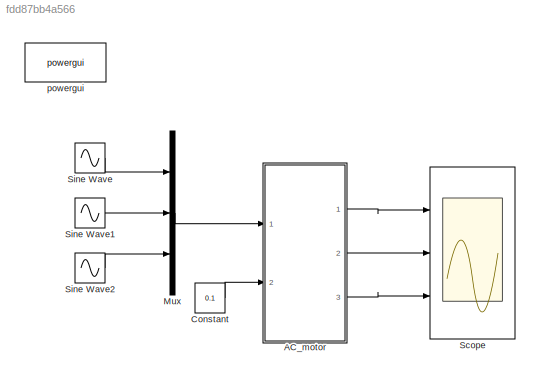
MODEL slx_fdd87bb4a566
KIND model
CONFIG AbsTol = auto
CONFIG EnableMultiTasking = off
CONFIG FixedStep = auto
CONFIG MaxStep = auto
CONFIG MinStep = auto
CONFIG RelTol = 1e-3
CONFIG SampleTimeConstraint = Unconstrained
CONFIG Solver = VariableStepAuto
CONFIG SolverName = VariableStepAuto
CONFIG StartTime = 0.0
CONFIG StopTime = 0.16
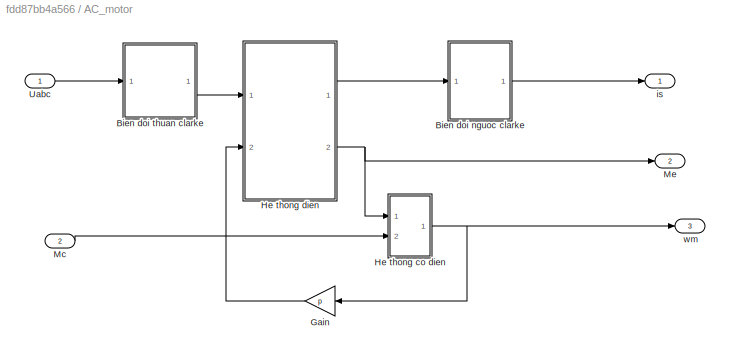
BLOCK [SubSystem] AC_motor
  Ports = [2, 3]
  RequestExecContextInheritance = off
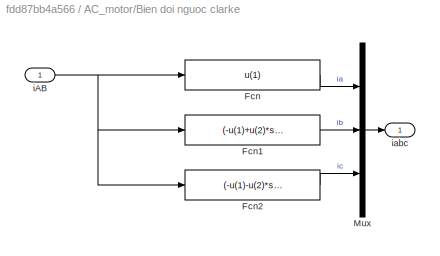
BLOCK [SubSystem] AC_motor/Bien doi nguoc clarke
  Ports = [1, 1]
  RequestExecContextInheritance = off
BLOCK [Fcn] AC_motor/Bien doi nguoc clarke/Fcn
  Expr = u(1)
BLOCK [Fcn] AC_motor/Bien doi nguoc clarke/Fcn1
  Expr = (-u(1)+u(2)*sqrt(3))/2
BLOCK [Fcn] AC_motor/Bien doi nguoc clarke/Fcn2
  Expr = (-u(1)-u(2)*sqrt(3))/2
BLOCK [Mux] AC_motor/Bien doi nguoc clarke/Mux
  DisplayOption = bar
  Inputs = 3
  Ports = [3, 1]
BLOCK [Inport] AC_motor/Bien doi nguoc clarke/iAB
  IconDisplay = Port number
BLOCK [Outport] AC_motor/Bien doi nguoc clarke/iabc
  IconDisplay = Port number
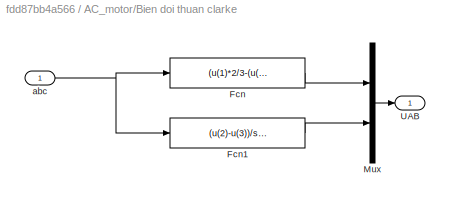
BLOCK [SubSystem] AC_motor/Bien doi thuan clarke
  Ports = [1, 1]
  RequestExecContextInheritance = off
BLOCK [Fcn] AC_motor/Bien doi thuan clarke/Fcn
  Expr = (u(1)*2/3-(u(2)+u(3))/3)
BLOCK [Fcn] AC_motor/Bien doi thuan clarke/Fcn1
  Expr = (u(2)-u(3))/sqrt(3)
BLOCK [Mux] AC_motor/Bien doi thuan clarke/Mux
  DisplayOption = bar
  Inputs = 2
  Ports = [2, 1]
BLOCK [Outport] AC_motor/Bien doi thuan clarke/UAB
  IconDisplay = Port number
BLOCK [Inport] AC_motor/Bien doi thuan clarke/abc
  IconDisplay = Port number
BLOCK [Gain] AC_motor/Gain
  Gain = p
  OutDataTypeStr = Inherit: Inherit via internal rule
  ParamDataTypeStr = Inherit: Inherit via internal rule
  SaturateOnIntegerOverflow = off
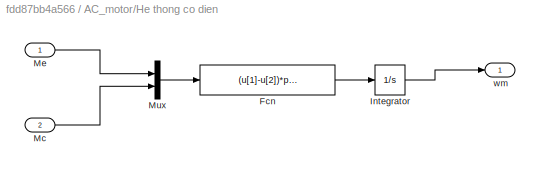
BLOCK [SubSystem] AC_motor/He thong co dien
  Ports = [2, 1]
  RequestExecContextInheritance = off
BLOCK [Fcn] AC_motor/He thong co dien/Fcn
  Expr = (u[1]-u[2])*p/(J)
BLOCK [Integrator] AC_motor/He thong co dien/Integrator
  Ports = [1, 1]
BLOCK [Inport] AC_motor/He thong co dien/Mc
  IconDisplay = Port number
  Port = 2
BLOCK [Inport] AC_motor/He thong co dien/Me
  IconDisplay = Port number
BLOCK [Mux] AC_motor/He thong co dien/Mux
  DisplayOption = bar
  Inputs = 2
  Ports = [2, 1]
BLOCK [Outport] AC_motor/He thong co dien/wm
  IconDisplay = Port number
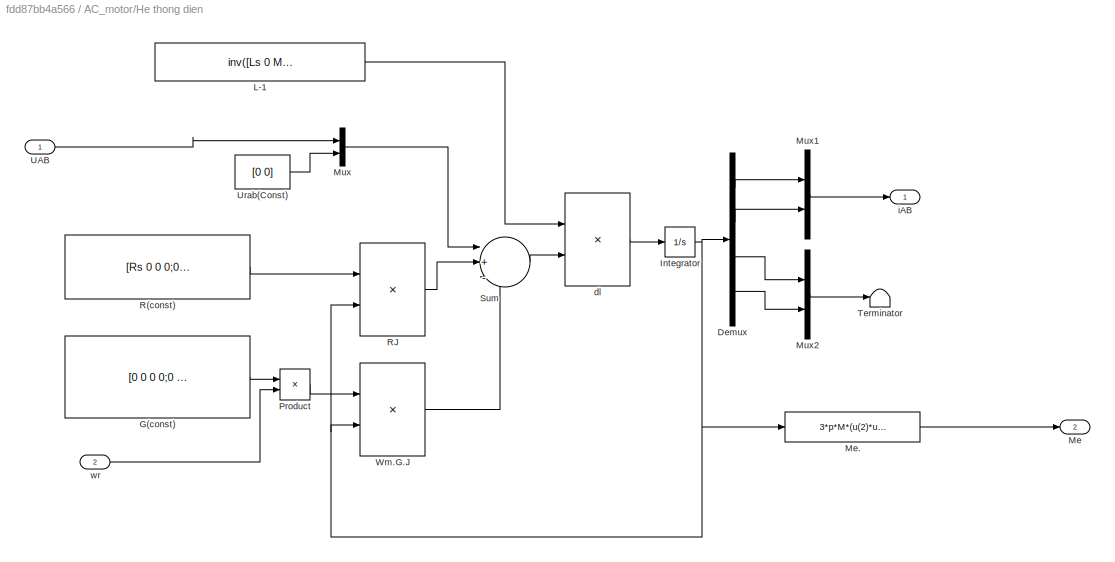
BLOCK [SubSystem] AC_motor/He thong dien 
  Ports = [2, 2]
  RequestExecContextInheritance = off
BLOCK [Demux] AC_motor/He thong dien /Demux
  DisplayOption = bar
  Ports = [1, 4]
BLOCK [Constant] AC_motor/He thong dien /G(const)
  Value = [0 0 0 0;0 0 0 0;0 M 0 Lr;(-M) 0 (-Lr) 0]
BLOCK [Integrator] AC_motor/He thong dien /Integrator
  Ports = [1, 1]
BLOCK [Constant] AC_motor/He thong dien /L-1
  Value = inv([Ls 0 M 0;0 Ls 0 M;M 0 Lr 0;0 M 0 Lr])
BLOCK [Outport] AC_motor/He thong dien /Me
  IconDisplay = Port number
  Port = 2
BLOCK [Fcn] AC_motor/He thong dien /Me.
  Expr = 3*p*M*(u(2)*u(3)-u(1)*u(4))/2
BLOCK [Mux] AC_motor/He thong dien /Mux
  DisplayOption = bar
  Inputs = 2
  Ports = [2, 1]
BLOCK [Mux] AC_motor/He thong dien /Mux1
  DisplayOption = bar
  Inputs = 2
  Ports = [2, 1]
BLOCK [Mux] AC_motor/He thong dien /Mux2
  DisplayOption = bar
  Inputs = 2
  Ports = [2, 1]
BLOCK [Product] AC_motor/He thong dien /Product
  InputSameDT = off
  OutDataTypeStr = Inherit: Inherit via internal rule
  Ports = [2, 1]
  RndMeth = Floor
  SaturateOnIntegerOverflow = off
BLOCK [Constant] AC_motor/He thong dien /R(const)
  Value = [Rs 0 0 0;0 Rs 0 0;0 0 Rr 0;0 0 0 Rr]
BLOCK [Product] AC_motor/He thong dien /RJ
  InputSameDT = off
  Multiplication = Matrix(*)
  OutDataTypeStr = Inherit: Inherit via internal rule
  Ports = [2, 1]
  RndMeth = Floor
  SaturateOnIntegerOverflow = off
BLOCK [Sum] AC_motor/He thong dien /Sum
  IconShape = round
  InputSameDT = off
  Inputs = |+--
  OutDataTypeStr = Inherit: Inherit via internal rule
  Ports = [3, 1]
  SaturateOnIntegerOverflow = off
BLOCK [Terminator] AC_motor/He thong dien /Terminator
BLOCK [Inport] AC_motor/He thong dien /UAB
  IconDisplay = Port number
BLOCK [Constant] AC_motor/He thong dien /Urab(Const)
  Value = [0 0]
BLOCK [Product] AC_motor/He thong dien /Wm.G.J
  InputSameDT = off
  Multiplication = Matrix(*)
  OutDataTypeStr = Inherit: Inherit via internal rule
  Ports = [2, 1]
  RndMeth = Floor
  SaturateOnIntegerOverflow = off
BLOCK [Product] AC_motor/He thong dien /dl
  InputSameDT = off
  Multiplication = Matrix(*)
  OutDataTypeStr = Inherit: Inherit via internal rule
  Ports = [2, 1]
  RndMeth = Floor
  SaturateOnIntegerOverflow = off
BLOCK [Outport] AC_motor/He thong dien /iAB
  IconDisplay = Port number
BLOCK [Inport] AC_motor/He thong dien /wr
  IconDisplay = Port number
  Port = 2
BLOCK [Inport] AC_motor/Mc
  IconDisplay = Port number
  Port = 2
BLOCK [Outport] AC_motor/Me
  IconDisplay = Port number
  Port = 2
BLOCK [Inport] AC_motor/Uabc
  IconDisplay = Port number
BLOCK [Outport] AC_motor/is
  IconDisplay = Port number
BLOCK [Outport] AC_motor/wm
  IconDisplay = Port number
  Port = 3
BLOCK [Constant] Constant
  Value = 0.1
BLOCK [Mux] Mux
  DisplayOption = bar
  Inputs = 3
  Ports = [3, 1]
BLOCK [Scope] Scope
  Floating = off
  NumInputPorts = 3
  Ports = [3]
  ScopeSpecificationString = Simulink.scopes.TimeScopeBlockCfg('CurrentConfiguration', extmgr.ConfigurationSet(extmgr.Configuration('Core','General UI',true),extmgr.Configuration('Core','Source UI',true),extmgr.Configuration('Sources','WiredSimulink',true),extmgr.Configuration('Visuals','Time Domain',true,'SerializedDisplays',{struct('MinYLimReal','-6.10077','MaxYLimReal','6.70886','YLabelReal','','MinYLimMag','0.00000','MaxY...<+2751ch>
BLOCK [Sin] Sine Wave
  Amplitude = 220
  Frequency = 2*pi*50
  Ports = [0, 1]
  SampleTime = 0
BLOCK [Sin] Sine Wave1
  Amplitude = 220
  Frequency = 2*pi*50
  Phase = -2*pi/3
  Ports = [0, 1]
  SampleTime = 0
BLOCK [Sin] Sine Wave2
  Amplitude = 220
  Frequency = 2*pi*50
  Phase = 2*pi/3
  Ports = [0, 1]
  SampleTime = 0
BLOCK [Reference] powergui  REF=powerlib/powergui
  Ports = []
  Priority = 1
  SourceBlock = powerlib/powergui
  SourceProductBaseCode = PS
  SourceProductName = Simscape Electrical
  SourceType = PSB option menu block
LINE AC_motor/Bien doi nguoc clarke/Fcn1:1 -> AC_motor/Bien doi nguoc clarke/Mux:2
LINE AC_motor/Bien doi nguoc clarke/Fcn2:1 -> AC_motor/Bien doi nguoc clarke/Mux:3
LINE AC_motor/Bien doi nguoc clarke/Fcn:1 -> AC_motor/Bien doi nguoc clarke/Mux:1
LINE AC_motor/Bien doi nguoc clarke/Mux:1 -> AC_motor/Bien doi nguoc clarke/iabc:1
NET AC_motor/Bien doi nguoc clarke/iAB:1 -> AC_motor/Bien doi nguoc clarke/Fcn1:1, AC_motor/Bien doi nguoc clarke/Fcn2:1, AC_motor/Bien doi nguoc clarke/Fcn:1
LINE AC_motor/Bien doi nguoc clarke:1 -> AC_motor/is:1
LINE AC_motor/Bien doi thuan clarke/Fcn1:1 -> AC_motor/Bien doi thuan clarke/Mux:2
LINE AC_motor/Bien doi thuan clarke/Fcn:1 -> AC_motor/Bien doi thuan clarke/Mux:1
LINE AC_motor/Bien doi thuan clarke/Mux:1 -> AC_motor/Bien doi thuan clarke/UAB:1
NET AC_motor/Bien doi thuan clarke/abc:1 -> AC_motor/Bien doi thuan clarke/Fcn1:1, AC_motor/Bien doi thuan clarke/Fcn:1
LINE AC_motor/Bien doi thuan clarke:1 -> AC_motor/He thong dien :1
LINE AC_motor/Gain:1 -> AC_motor/He thong dien :2
LINE AC_motor/He thong co dien/Fcn:1 -> AC_motor/He thong co dien/Integrator:1
LINE AC_motor/He thong co dien/Integrator:1 -> AC_motor/He thong co dien/wm:1
LINE AC_motor/He thong co dien/Mc:1 -> AC_motor/He thong co dien/Mux:2
LINE AC_motor/He thong co dien/Me:1 -> AC_motor/He thong co dien/Mux:1
LINE AC_motor/He thong co dien/Mux:1 -> AC_motor/He thong co dien/Fcn:1
NET AC_motor/He thong co dien:1 -> AC_motor/Gain:1, AC_motor/wm:1
LINE AC_motor/He thong dien /Demux:1 -> AC_motor/He thong dien /Mux1:1
LINE AC_motor/He thong dien /Demux:2 -> AC_motor/He thong dien /Mux1:2
LINE AC_motor/He thong dien /Demux:3 -> AC_motor/He thong dien /Mux2:1
LINE AC_motor/He thong dien /Demux:4 -> AC_motor/He thong dien /Mux2:2
LINE AC_motor/He thong dien /G(const):1 -> AC_motor/He thong dien /Product:1
NET AC_motor/He thong dien /Integrator:1 -> AC_motor/He thong dien /Demux:1, AC_motor/He thong dien /Me.:1, AC_motor/He thong dien /RJ:2, AC_motor/He thong dien /Wm.G.J:2
LINE AC_motor/He thong dien /L-1:1 -> AC_motor/He thong dien /dl:1
LINE AC_motor/He thong dien /Me.:1 -> AC_motor/He thong dien /Me:1
LINE AC_motor/He thong dien /Mux1:1 -> AC_motor/He thong dien /iAB:1
LINE AC_motor/He thong dien /Mux2:1 -> AC_motor/He thong dien /Terminator:1
LINE AC_motor/He thong dien /Mux:1 -> AC_motor/He thong dien /Sum:1
LINE AC_motor/He thong dien /Product:1 -> AC_motor/He thong dien /Wm.G.J:1
LINE AC_motor/He thong dien /R(const):1 -> AC_motor/He thong dien /RJ:1
LINE AC_motor/He thong dien /RJ:1 -> AC_motor/He thong dien /Sum:2
LINE AC_motor/He thong dien /Sum:1 -> AC_motor/He thong dien /dl:2
LINE AC_motor/He thong dien /UAB:1 -> AC_motor/He thong dien /Mux:1
LINE AC_motor/He thong dien /Urab(Const):1 -> AC_motor/He thong dien /Mux:2
LINE AC_motor/He thong dien /Wm.G.J:1 -> AC_motor/He thong dien /Sum:3
LINE AC_motor/He thong dien /dl:1 -> AC_motor/He thong dien /Integrator:1
LINE AC_motor/He thong dien /wr:1 -> AC_motor/He thong dien /Product:2
LINE AC_motor/He thong dien :1 -> AC_motor/Bien doi nguoc clarke:1
NET AC_motor/He thong dien :2 -> AC_motor/He thong co dien:1, AC_motor/Me:1
LINE AC_motor/Mc:1 -> AC_motor/He thong co dien:2
LINE AC_motor/Uabc:1 -> AC_motor/Bien doi thuan clarke:1
LINE AC_motor:1 -> Scope:1
LINE AC_motor:2 -> Scope:2
LINE AC_motor:3 -> Scope:3
LINE Constant:1 -> AC_motor:2
LINE Mux:1 -> AC_motor:1
LINE Sine Wave1:1 -> Mux:2
LINE Sine Wave2:1 -> Mux:3
LINE Sine Wave:1 -> Mux:1
note: NET lines group one-source signal fan-out (src -> all destinations, sorted); 1:1 wires keep LINE
